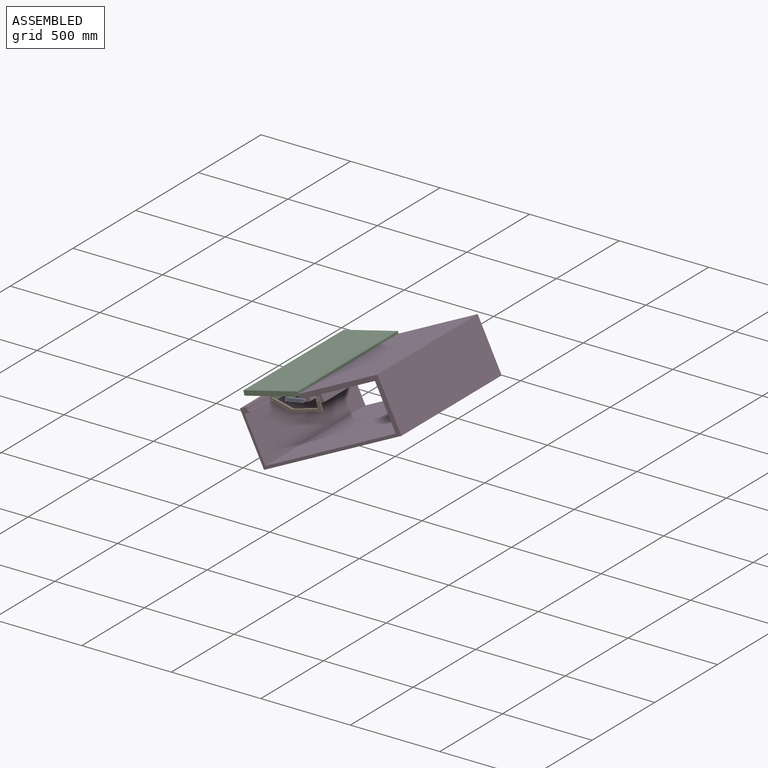
[diagram: assembled view]
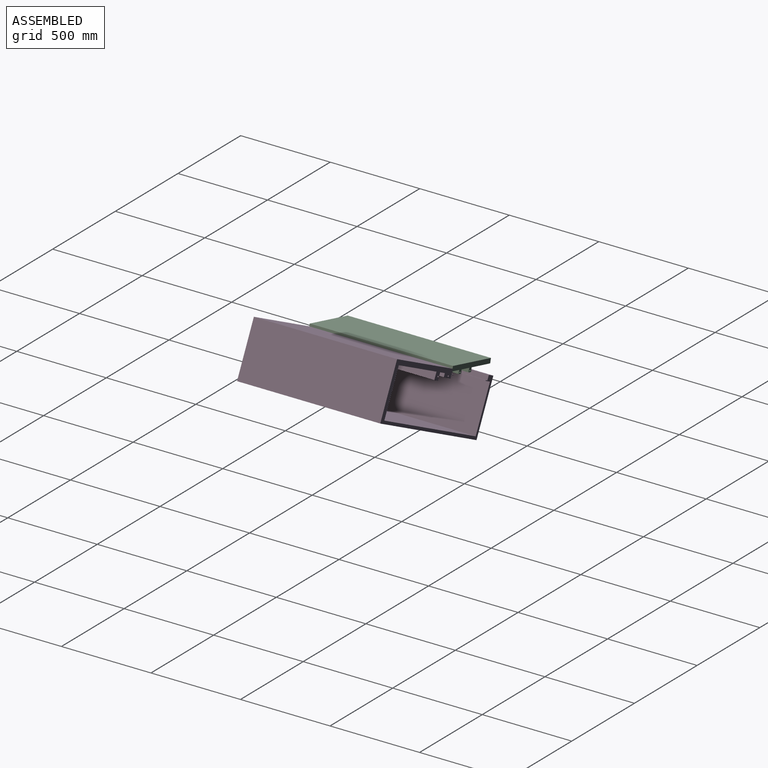
[diagram: assembled view, second angle]
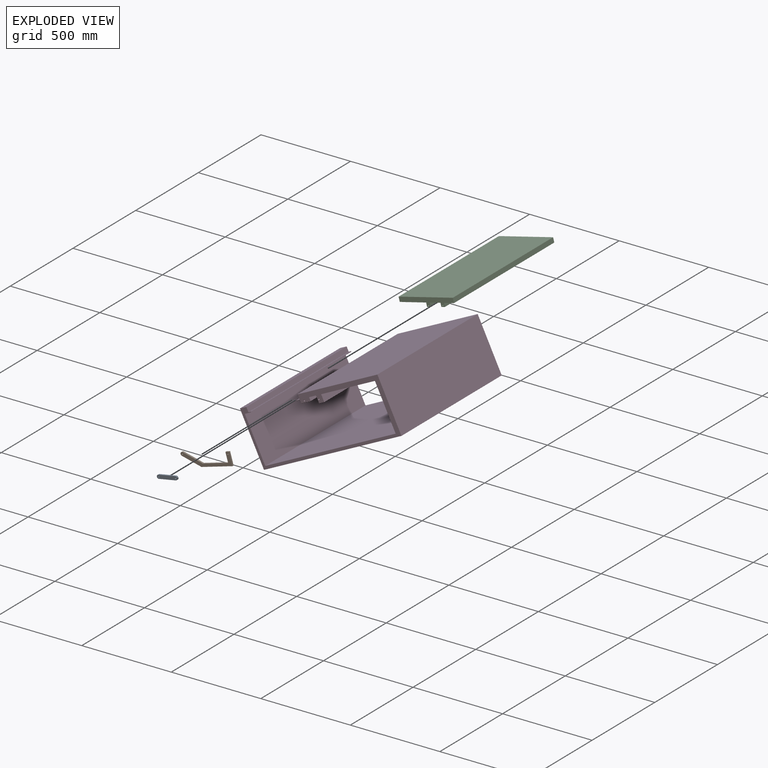
[diagram: exploded view]
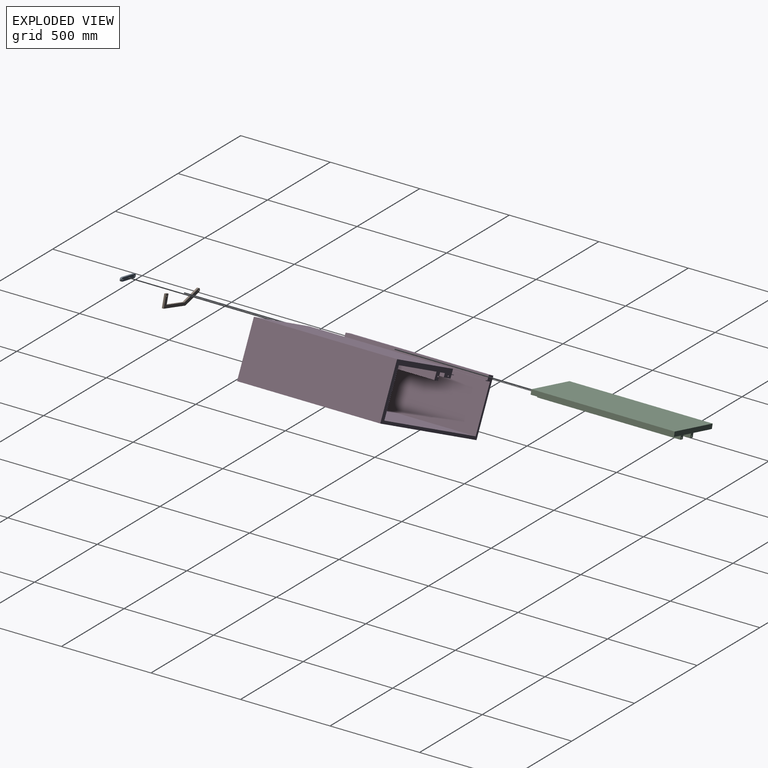
[diagram: exploded view, second angle]
ASSEMBLY  parts=4 mates=4
PART A: 8 faces, bbox 115.6x10x22 mm
  f0: cylinder r=10mm len=20mm, axis (0,1,0), area 314.2mm2, adj f1,f4,f6,f7
  f1: plane 95.55x10mm, normal (-0.02,0,-1), area 955.7mm2, adj f0,f2,f6,f7
  f2: cylinder r=10mm len=20mm, axis (0,1,0), area 314.2mm2, adj f1,f4,f6,f7
  f3: cylinder r=4mm len=10mm, axis (0,1,0), area 251.3mm2, adj f6,f7
  f4: plane 95.55x10mm, normal (0.02,0,1), area 955.7mm2, adj f0,f2,f6,f7
  f5: cylinder r=4mm len=10mm, axis (0,1,0), area 251.3mm2, adj f6,f7
  f6: plane 115.55x22mm, normal (0,-1,0), area 2125.1mm2, adj f0,f1,f2,f3,f4,f5
  f7: plane 115.55x22mm, normal (0,1,0), area 2125.1mm2, adj f0,f1,f2,f3,f4,f5
PART B: 12 faces, bbox 282.1x10x75.2 mm
  f0: plane 20x10mm, normal (0,0,1), area 200mm2, adj f1,f8,f10,f11
  f1: plane 70x10mm, normal (-1,0,0), area 700mm2, adj f0,f2,f10,f11
  f2: plane 179.34x10mm, normal (0,0,-1), area 1793.3mm2, adj f1,f3,f10,f11
  f3: plane 97.78x56.53mm, normal (0.5,0,-0.87), area 1129.5mm2, adj f2,f4,f10,f11
  f4: cylinder r=10mm len=18.66mm, axis (0,1,0), area 314.2mm2, adj f3,f5,f10,f11
  f5: plane 99.85x57.72mm, normal (-0.5,0,0.87), area 1153.3mm2, adj f4,f6,f10,f11
  f6: plane 147.26x10mm, normal (0,0,1), area 1472.6mm2, adj f5,f8,f10,f11
  f7: cylinder r=4mm len=10mm, axis (0,1,0), area 251.3mm2, adj f10,f11
  f8: plane 53.88x10mm, normal (1,0,0), area 538.8mm2, adj f0,f6,f10,f11
  f9: cylinder r=4mm len=10mm, axis (0,1,0), area 251.3mm2, adj f10,f11
  f10: plane 282.11x75.18mm, normal (0,-1,0), area 6210.7mm2, adj f0,f1,f2,f3,f4,f5,f6,f7
  f11: plane 282.11x75.18mm, normal (0,1,0), area 6210.7mm2, adj f0,f1,f2,f3,f4,f5,f6,f7
PART C: 18 faces, bbox 312x800x48 mm
  f0: plane 800x311.99mm, normal (0,0,1), area 249588.5mm2, adj f1,f15,f16,f17
  f1: plane 800x26mm, normal (-1,0,0), area 20800mm2, adj f0,f2,f16,f17
  f2: plane 800x57.55mm, normal (0,0,-1), area 46042.4mm2, adj f1,f3,f16,f17
  f3: plane 800x20mm, normal (-1,0,0), area 16000mm2, adj f2,f4,f16,f17
  f4: plane 800x20mm, normal (0,0,-1), area 16000mm2, adj f3,f5,f16,f17
  f5: plane 800x20mm, normal (1,0,0), area 16000mm2, adj f4,f6,f16,f17
  f6: plane 800x62.45mm, normal (0,0,-1), area 49957.6mm2, adj f5,f7,f16,f17
  f7: plane 800x22mm, normal (-1,0,0), area 17600mm2, adj f6,f8,f16,f17
  f8: plane 800x20mm, normal (0,0,-1), area 16000mm2, adj f7,f9,f16,f17
  f9: plane 800x22mm, normal (1,0,0), area 17600mm2, adj f8,f10,f16,f17
  f10: plane 800x140.34mm, normal (0,0,-1), area 112275.8mm2, adj f9,f11,f16,f17
  f11: plane 800x0.34mm, normal (1,0,0), area 269.9mm2, adj f10,f12,f16,f17
  f12: plane 800x11.64mm, normal (0,0,-1), area 9312.7mm2, adj f11,f15,f16,f17
  f13: cylinder r=4mm len=800mm, axis (0,1,0), area 20106.2mm2, adj f16,f17
  f14: cylinder r=4mm len=800mm, axis (0,1,0), area 20106.2mm2, adj f16,f17
  f15: plane 800x25.66mm, normal (1,0,0), area 20530.1mm2, adj f0,f12,f16,f17
  f16: plane 311.99x48mm, normal (0,-1,0), area 8847.2mm2, adj f0,f1,f2,f3,f4,f5,f6,f7
  f17: plane 311.99x48mm, normal (0,1,0), area 8847.2mm2, adj f0,f1,f2,f3,f4,f5,f6,f7
PART D: 30 faces, bbox 855x800x305.3 mm
  f0: plane 800x3mm, normal (0,0,1), area 2400mm2, adj f1,f27,f28,f29
  f1: plane 800x0.34mm, normal (-1,0,0), area 269.9mm2, adj f0,f2,f28,f29
  f2: plane 800x11.64mm, normal (0,0,1), area 9312.7mm2, adj f1,f3,f28,f29
  f3: plane 800x3.51mm, normal (-1,0,0), area 2806.3mm2, adj f2,f4,f28,f29
  f4: plane 800x38.92mm, normal (0,0,-1), area 31139.6mm2, adj f3,f5,f28,f29
  f5: plane 800x258.89mm, normal (-1,0,0), area 207115.1mm2, adj f4,f6,f28,f29
  f6: plane 811.61x800mm, normal (0,0,1), area 649284.2mm2, adj f5,f7,f28,f29
  f7: plane 800x262.4mm, normal (1,0,0), area 209921.3mm2, adj f6,f8,f28,f29
  f8: plane 800x334.85mm, normal (0,0,-1), area 267880mm2, adj f7,f9,f28,f29
  f9: plane 800x40mm, normal (-1,0,0), area 32000mm2, adj f8,f10,f28,f29
  f10: plane 800x32.49mm, normal (0,0,-1), area 25988.8mm2, adj f9,f11,f28,f29
  f11: plane 800x40mm, normal (1,0,0), area 32000mm2, adj f10,f12,f28,f29
  f12: plane 800x42mm, normal (0,0,-1), area 33600mm2, adj f11,f13,f28,f29
  f13: plane 800x20mm, normal (-1,0,0), area 16000mm2, adj f12,f14,f28,f29
  f14: plane 800x60mm, normal (0,0,-1), area 48000mm2, adj f13,f15,f28,f29
  f15: plane 800x17mm, normal (1,0,0), area 13600mm2, adj f14,f16,f28,f29
  f16: plane 800x20mm, normal (0,0,-1), area 16000mm2, adj f15,f17,f28,f29
  f17: plane 800x3mm, normal (1,0,0), area 2400mm2, adj f16,f18,f28,f29
  f18: plane 800x20mm, normal (0,0,1), area 16000mm2, adj f17,f19,f28,f29
  f19: plane 800x26mm, normal (1,0,0), area 20800mm2, adj f18,f20,f28,f29
  f20: plane 800x497.19mm, normal (0,0,1), area 397752.1mm2, adj f19,f21,f28,f29
  f21: plane 800x304.95mm, normal (-1,0,0), area 243957.5mm2, adj f20,f22,f28,f29
  f22: plane 854.97x800mm, normal (0,0,-1), area 683977.5mm2, adj f21,f23,f28,f29
  f23: plane 800x305.28mm, normal (1,0,0), area 244227.4mm2, adj f22,f24,f28,f29
  f24: plane 800x39.8mm, normal (-0.01,0,1), area 31837.9mm2, adj f23,f27,f28,f29
  f25: cylinder r=4mm len=800mm, axis (0,1,0), area 20106.2mm2, adj f28,f29
  f26: cylinder r=4mm len=800mm, axis (0,1,0), area 20106.2mm2, adj f28,f29
  f27: plane 800x25.66mm, normal (-1,0,0), area 20530.1mm2, adj f0,f24,f28,f29
  f28: plane 854.97x305.28mm, normal (0,-1,0), area 42089.9mm2, adj f0,f1,f2,f3,f4,f5,f6,f7
  f29: plane 854.97x305.28mm, normal (0,1,0), area 42089.9mm2, adj f0,f1,f2,f3,f4,f5,f6,f7
PLACE A rot(axis=(-1,0,-0.08),180deg) t=(-778.26,-10,-33.96)mm
PLACE B rot(axis=(-0.14,0,0.99),180deg) t=(354.13,-10,191.87)mm
PLACE C rot(axis=(0.12,0,-0.99),180deg) t=(360.77,0,164.79)mm
PLACE D rot(axis=(0.23,0,-0.97),180deg) t=(327.79,0,264.64)mm fixed
MATE revolute A.f2 <-> D.f26  axis (0,1,0) through (-157.3,0,48.67)mm
MATE revolute D.f25 <-> B.f9  axis (0,-1,0) through (-76.59,0,77.14)mm
MATE revolute C.f14 <-> A.f0  axis (0,-1,0) through (-251.3,0,31.39)mm
MATE revolute C.f13 <-> B.f4  axis (0,-1,0) through (-330.84,0,9.6)mm
